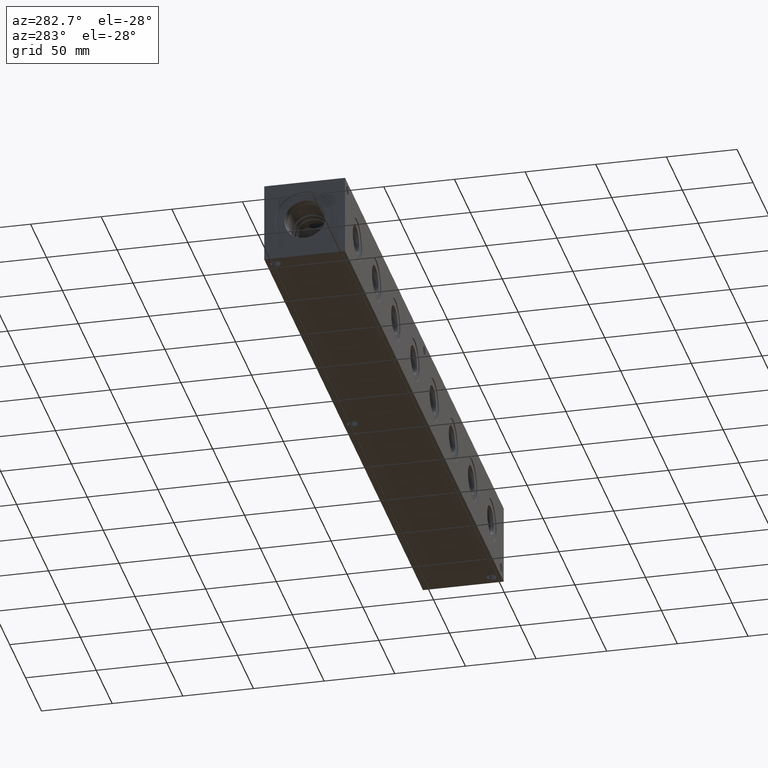
[diagram: clean part render]
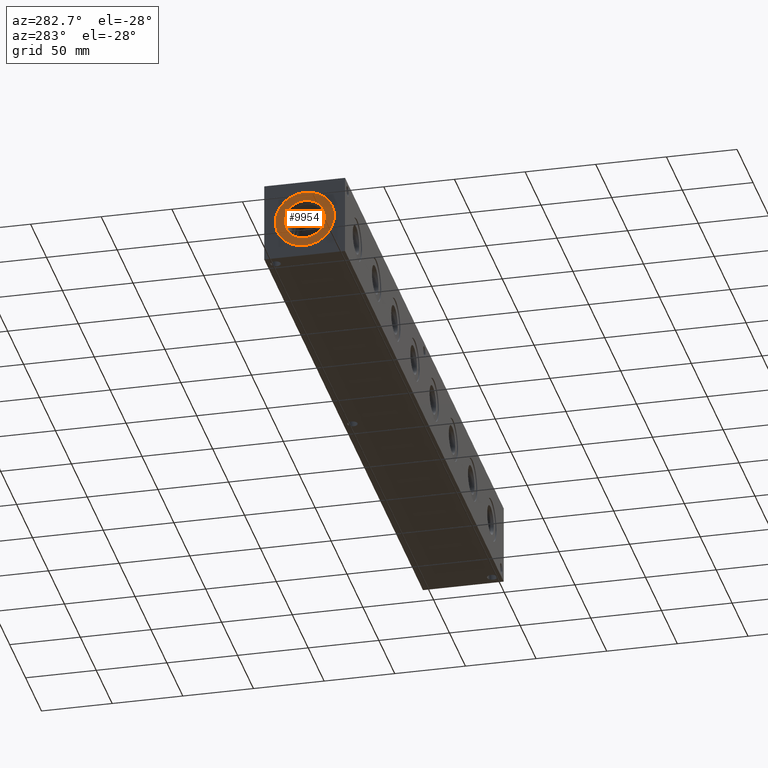
[diagram: same view with one face highlighted and labeled with its STEP entity id]
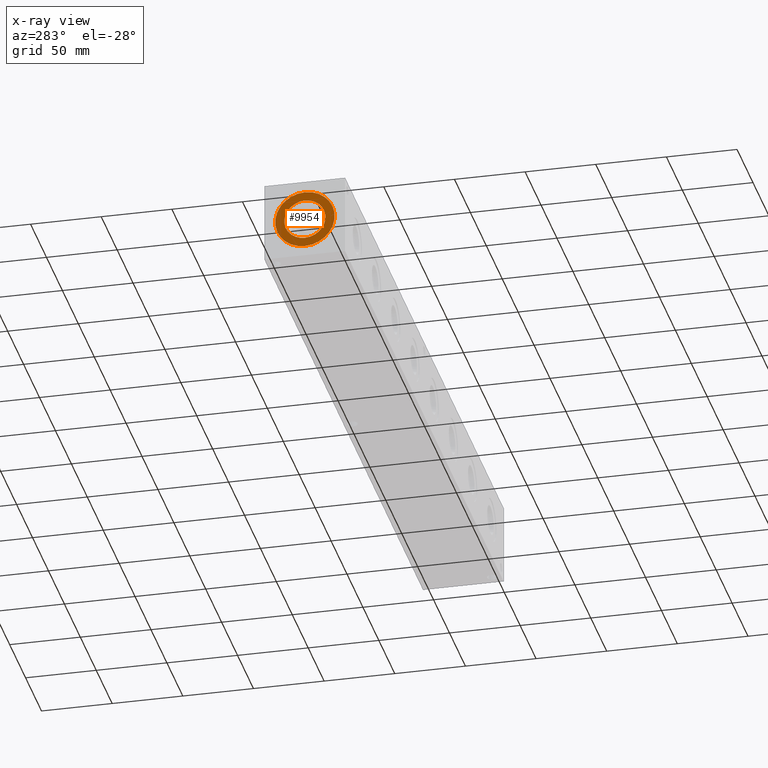
[diagram: x-ray of the same camera — body ghosted, the highlighted face saturated]
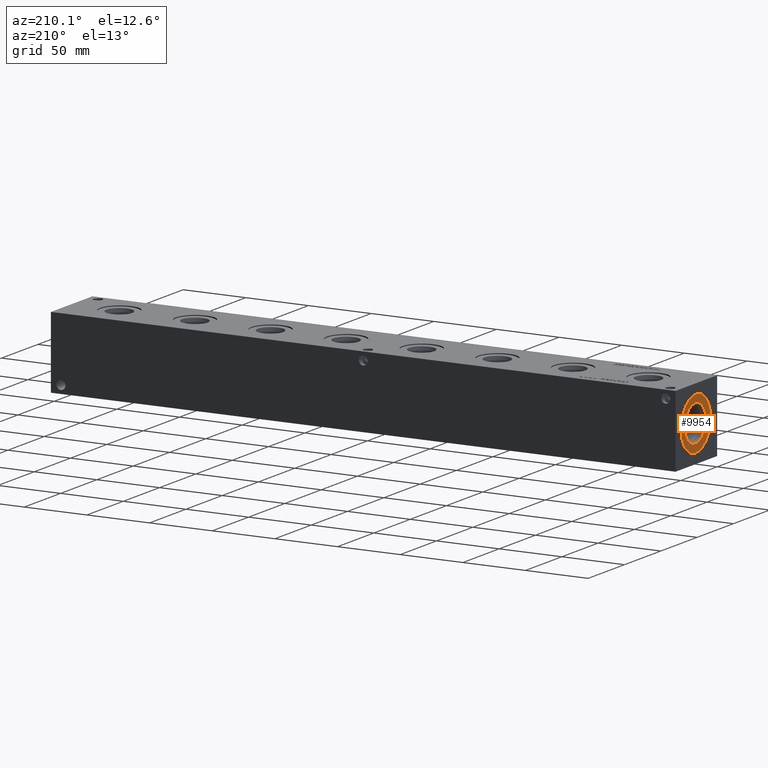
[diagram: same view with one face highlighted and labeled with its STEP entity id]
A machine part, auxiliary view. The second image highlights one B-rep face of the part: STEP entity #9954.
The next image is the same camera in x-ray: the body ghosted, the highlighted face saturated — about 0% of this face is hidden behind the body in this view.
A second angle (auxiliary view) of the same face is appended — the face is thin or edge-on in the first view.
In plain terms, the highlighted planar face has unit normal (1, 0, 0).
Its self-contained STEP definition (entity closure, byte-faithful):
#502=CIRCLE('',#10692,21.0185);
#503=CIRCLE('',#10693,21.0185);
#504=CIRCLE('',#10695,14.5923);
#505=CIRCLE('',#10696,14.5923);
#587=FACE_BOUND('',#1949,.T.);
#836=PLANE('',#10694);
#1352=FACE_OUTER_BOUND('',#1948,.T.);
#1948=EDGE_LOOP('',(#8927,#8928));
#1949=EDGE_LOOP('',(#8929,#8930));
#4774=VERTEX_POINT('',#17599);
#4775=VERTEX_POINT('',#17601);
#4776=VERTEX_POINT('',#17605);
#4777=VERTEX_POINT('',#17606);
#6173=EDGE_CURVE('',#4774,#4775,#502,.T.);
#6174=EDGE_CURVE('',#4775,#4774,#503,.T.);
#6175=EDGE_CURVE('',#4776,#4777,#504,.T.);
#6176=EDGE_CURVE('',#4777,#4776,#505,.T.);
#8927=ORIENTED_EDGE('',*,*,#6174,.F.);
#8928=ORIENTED_EDGE('',*,*,#6173,.F.);
#8929=ORIENTED_EDGE('',*,*,#6175,.T.);
#8930=ORIENTED_EDGE('',*,*,#6176,.T.);
#9954=ADVANCED_FACE('',(#1352,#587),#836,.F.);
#10692=AXIS2_PLACEMENT_3D('',#17602,#12913,#12914);
#10693=AXIS2_PLACEMENT_3D('',#17603,#12915,#12916);
#10694=AXIS2_PLACEMENT_3D('',#17604,#12917,#12918);
#10695=AXIS2_PLACEMENT_3D('',#17607,#12919,#12920);
#10696=AXIS2_PLACEMENT_3D('',#17608,#12921,#12922);
#12913=DIRECTION('center_axis',(1.,0.,0.));
#12914=DIRECTION('ref_axis',(0.,0.,-1.));
#12915=DIRECTION('center_axis',(1.,0.,0.));
#12916=DIRECTION('ref_axis',(0.,0.,-1.));
#12917=DIRECTION('center_axis',(1.,0.,0.));
#12918=DIRECTION('ref_axis',(0.,0.,-1.));
#12919=DIRECTION('center_axis',(1.,0.,0.));
#12920=DIRECTION('ref_axis',(0.,0.,-1.));
#12921=DIRECTION('center_axis',(1.,0.,0.));
#12922=DIRECTION('ref_axis',(0.,0.,-1.));
#17599=CARTESIAN_POINT('',(0.7874,28.575,7.55649999999999));
#17601=CARTESIAN_POINT('',(0.7874,28.575,49.5935));
#17602=CARTESIAN_POINT('Origin',(0.7874,28.575,28.575));
#17603=CARTESIAN_POINT('Origin',(0.7874,28.575,28.575));
#17604=CARTESIAN_POINT('Origin',(0.7874,28.575,43.1673));
#17605=CARTESIAN_POINT('',(0.7874,28.575,43.1673));
#17606=CARTESIAN_POINT('',(0.787399999999999,28.575,13.9827));
#17607=CARTESIAN_POINT('Origin',(0.7874,28.575,28.575));
#17608=CARTESIAN_POINT('Origin',(0.7874,28.575,28.575));